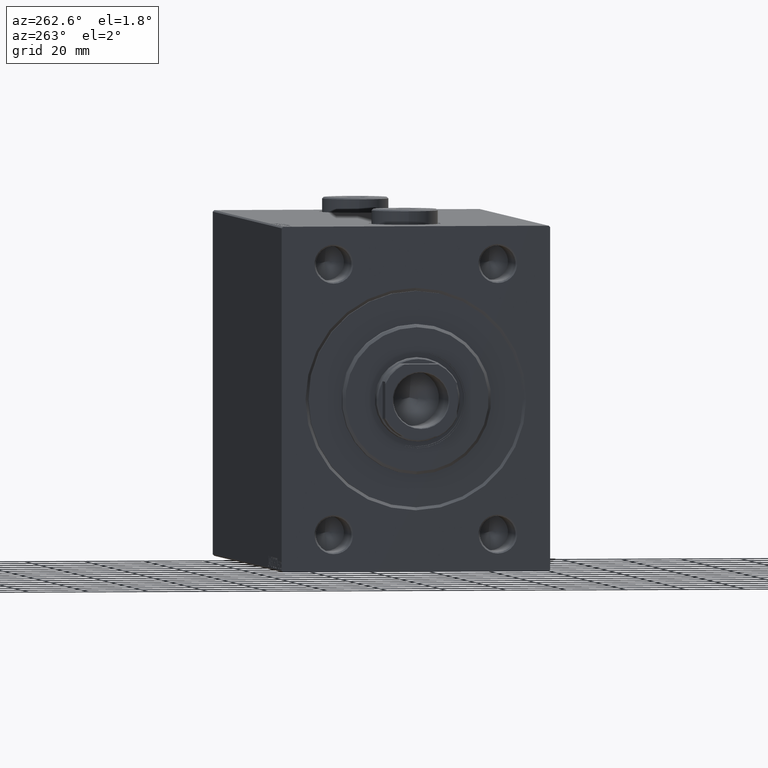
[diagram: clean part render]
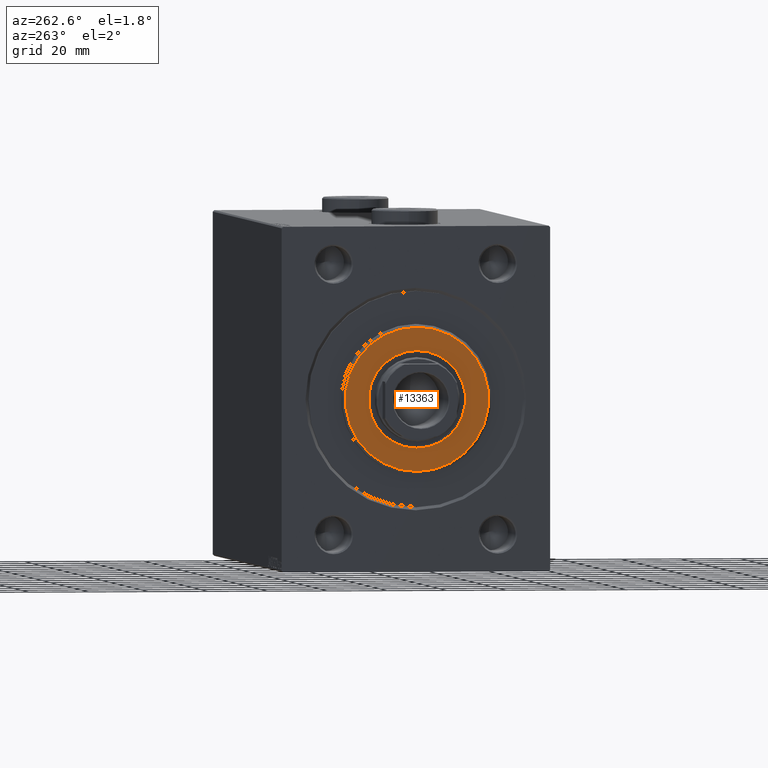
[diagram: same view with one face highlighted and labeled with its STEP entity id]
A machine part, auxiliary view. The second image highlights one B-rep face of the part: STEP entity #13363.
In plain terms, the highlighted planar face has unit normal (-1, 0, 0).
Its self-contained STEP definition (entity closure, byte-faithful):
#463 = DIRECTION ( 'NONE',  ( 0.000000000000000000, 0.000000000000000000, -1.000000000000000000 ) ) ;
#3910 = DIRECTION ( 'NONE',  ( 0.000000000000000000, 0.000000000000000000, -1.000000000000000000 ) ) ;
#5640 = AXIS2_PLACEMENT_3D ( 'NONE', #39439, #17978, #32500 ) ;
#7379 = FACE_OUTER_BOUND ( 'NONE', #26177, .T. ) ;
#7740 = VERTEX_POINT ( 'NONE', #21662 ) ;
#7741 = CARTESIAN_POINT ( 'NONE',  ( 3.000000000000000000, 0.000000000000000000, 0.000000000000000000 ) ) ;
#8577 = AXIS2_PLACEMENT_3D ( 'NONE', #18029, #32110, #463 ) ;
#10976 = ORIENTED_EDGE ( 'NONE', *, *, #30424, .F. ) ;
#11078 = PLANE ( 'NONE',  #28798 ) ;
#12159 = VERTEX_POINT ( 'NONE', #42012 ) ;
#12551 = EDGE_CURVE ( 'NONE', #31749, #40335, #33956, .T. ) ;
#13105 = AXIS2_PLACEMENT_3D ( 'NONE', #7741, #21819, #35903 ) ;
#13363 = ADVANCED_FACE ( 'NONE', ( #7379, #43168 ), #11078, .T. ) ;
#15806 = CARTESIAN_POINT ( 'NONE',  ( 3.000000000000000000, 0.000000000000000000, 0.000000000000000000 ) ) ;
#17425 = CIRCLE ( 'NONE', #13105, 16.25000000000000000 ) ;
#17978 = DIRECTION ( 'NONE',  ( 1.000000000000000000, 0.000000000000000000, 0.000000000000000000 ) ) ;
#18029 = CARTESIAN_POINT ( 'NONE',  ( 3.000000000000000000, 0.000000000000000000, 0.000000000000000000 ) ) ;
#18224 = CARTESIAN_POINT ( 'NONE',  ( 3.000000000000000000, 0.000000000000000000, 0.000000000000000000 ) ) ;
#21662 = CARTESIAN_POINT ( 'NONE',  ( 3.000000000000000000, 0.000000000000000000, -16.25000000000000000 ) ) ;
#21819 = DIRECTION ( 'NONE',  ( 1.000000000000000000, 0.000000000000000000, 0.000000000000000000 ) ) ;
#21822 = CARTESIAN_POINT ( 'NONE',  ( 3.000000000000000000, 3.000384657911015469E-15, -24.00000000000000711 ) ) ;
#22312 = EDGE_LOOP ( 'NONE', ( #10976, #43377 ) ) ;
#25364 = DIRECTION ( 'NONE',  ( 1.000000000000000000, -0.000000000000000000, 0.000000000000000000 ) ) ;
#25626 = ORIENTED_EDGE ( 'NONE', *, *, #12551, .T. ) ;
#26177 = EDGE_LOOP ( 'NONE', ( #25626, #34483 ) ) ;
#26178 = DIRECTION ( 'NONE',  ( 0.000000000000000000, 0.000000000000000000, -1.000000000000000000 ) ) ;
#27025 = CIRCLE ( 'NONE', #8577, 24.00000000000000711 ) ;
#28798 = AXIS2_PLACEMENT_3D ( 'NONE', #18224, #25364, #3910 ) ;
#29184 = DIRECTION ( 'NONE',  ( 1.000000000000000000, -0.000000000000000000, 0.000000000000000000 ) ) ;
#30424 = EDGE_CURVE ( 'NONE', #7740, #12159, #17425, .T. ) ;
#31112 = EDGE_CURVE ( 'NONE', #40335, #31749, #27025, .T. ) ;
#31362 = EDGE_CURVE ( 'NONE', #12159, #7740, #33658, .T. ) ;
#31749 = VERTEX_POINT ( 'NONE', #35358 ) ;
#32110 = DIRECTION ( 'NONE',  ( 1.000000000000000000, -0.000000000000000000, 0.000000000000000000 ) ) ;
#32500 = DIRECTION ( 'NONE',  ( 0.000000000000000000, 0.000000000000000000, -1.000000000000000000 ) ) ;
#33658 = CIRCLE ( 'NONE', #5640, 16.25000000000000000 ) ;
#33956 = CIRCLE ( 'NONE', #36878, 24.00000000000000711 ) ;
#34483 = ORIENTED_EDGE ( 'NONE', *, *, #31112, .T. ) ;
#35358 = CARTESIAN_POINT ( 'NONE',  ( 3.000000000000000000, 0.000000000000000000, 24.00000000000000711 ) ) ;
#35903 = DIRECTION ( 'NONE',  ( 0.000000000000000000, 0.000000000000000000, -1.000000000000000000 ) ) ;
#36878 = AXIS2_PLACEMENT_3D ( 'NONE', #15806, #29184, #26178 ) ;
#39439 = CARTESIAN_POINT ( 'NONE',  ( 3.000000000000000000, 0.000000000000000000, 0.000000000000000000 ) ) ;
#40335 = VERTEX_POINT ( 'NONE', #21822 ) ;
#42012 = CARTESIAN_POINT ( 'NONE',  ( 3.000000000000000000, 1.990051048614449313E-15, 16.25000000000000000 ) ) ;
#43168 = FACE_BOUND ( 'NONE', #22312, .T. ) ;
#43377 = ORIENTED_EDGE ( 'NONE', *, *, #31362, .F. ) ;